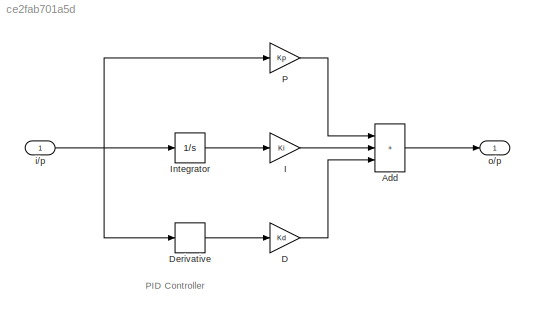
MODEL slx_ce2fab701a5d
KIND model
CONFIG AbsTol = auto
CONFIG EnableMultiTasking = off
CONFIG FixedStep = auto
CONFIG MaxStep = auto
CONFIG MinStep = auto
CONFIG RelTol = 1e-3
CONFIG SampleTimeConstraint = Unconstrained
CONFIG SolverName = FixedStepAuto
CONFIG StartTime = 0.0
CONFIG StopTime = 120
BLOCK [Sum] Add
  IconShape = rectangular
  Inputs = +++
  Ports = [3, 1]
BLOCK [Gain] D
  Gain = Kd
BLOCK [Derivative] Derivative
BLOCK [Gain] I
  Gain = Ki
BLOCK [Integrator] Integrator
  Ports = [1, 1]
BLOCK [Gain] P
  Gain = Kp
BLOCK [Inport] i//p
  OutDataTypeStr = double
  PortDimensions = 1
  SampleTime = 0
  SamplingMode = Sample based
  SignalType = real
BLOCK [Outport] o//p
  OutDataTypeStr = double
  PortDimensions = 1
  SampleTime = 0
  SamplingMode = Sample based
  SignalType = real
ANNOTATION (root): PID Controller
LINE Add:1 -> o//p:1
LINE D:1 -> Add:3
LINE Derivative:1 -> D:1
LINE I:1 -> Add:2
LINE Integrator:1 -> I:1
LINE P:1 -> Add:1
NET i//p:1 -> Derivative:1, Integrator:1, P:1
note: NET lines group one-source signal fan-out (src -> all destinations, sorted); 1:1 wires keep LINE
